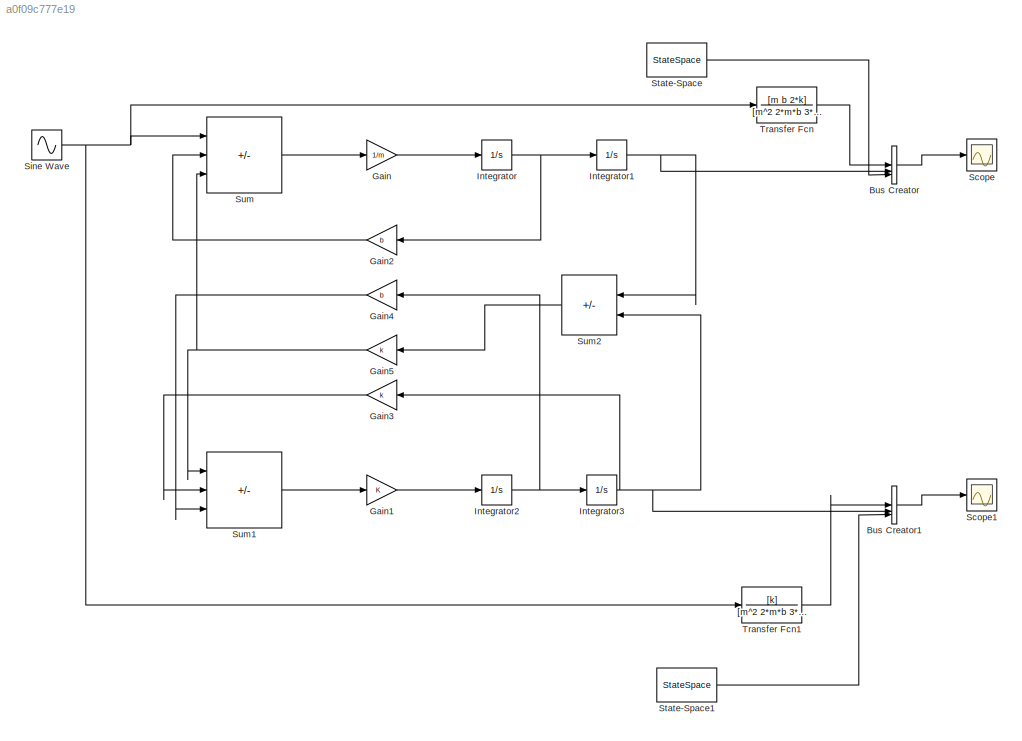
MODEL slx_a0f09c777e19
KIND model
CONFIG AbsTol = auto
CONFIG EnableMultiTasking = off
CONFIG FixedStep = auto
CONFIG MaxStep = auto
CONFIG MinStep = auto
CONFIG RelTol = 1e-3
CONFIG SampleTimeConstraint = Unconstrained
CONFIG SolverName = VariableStepAuto
CONFIG StartTime = 0.0
CONFIG StopTime = 10.0
BLOCK [BusCreator] Bus Creator
  DisplayOption = bar
  InheritFromInputs = on
  Inputs = 3
BLOCK [BusCreator] Bus Creator1
  DisplayOption = bar
  InheritFromInputs = on
  Inputs = 3
BLOCK [Gain] Gain
  Gain = 1/m
BLOCK [Gain] Gain1
BLOCK [Gain] Gain2
  Gain = b
BLOCK [Gain] Gain3
  Gain = k
BLOCK [Gain] Gain4
  Gain = b
BLOCK [Gain] Gain5
  Gain = k
BLOCK [Integrator] Integrator
BLOCK [Integrator] Integrator1
BLOCK [Integrator] Integrator2
BLOCK [Integrator] Integrator3
BLOCK [Scope] Scope
  Floating = off
  NumInputPorts = 1
  ScopeSpecificationString = Simulink.scopes.TimeScopeBlockCfg('CurrentConfiguration', extmgr.ConfigurationSet(extmgr.Configuration('Core','General UI',true),extmgr.Configuration('Core','Source UI',true),extmgr.Configuration('Sources','WiredSimulink',true),extmgr.Configuration('Visuals','Time Domain',true,'SerializedDisplays',{struct('MinYLimReal','-0.03068','MaxYLimReal','0.27609','YLabelReal','','MinYLimMag','0.00000','MaxY...<+1360ch>
BLOCK [Scope] Scope1
  Floating = off
  NumInputPorts = 1
  ScopeSpecificationString = Simulink.scopes.TimeScopeBlockCfg('CurrentConfiguration', extmgr.ConfigurationSet(extmgr.Configuration('Core','General UI',true),extmgr.Configuration('Core','Source UI',true),extmgr.Configuration('Sources','WiredSimulink',true,'DataLoggingVariableName','ScopeData1'),extmgr.Configuration('Visuals','Time Domain',true,'SerializedDisplays',{struct('MinYLimReal','-0.08332','MaxYLimReal','0.74984','YLab...<+1401ch>
BLOCK [Sin] Sine Wave
  Frequency = omega
  SampleTime = 0
BLOCK [StateSpace] State-Space
  A = A
  B = B
  C = C1
  D = D1
  InitialCondition = 0
BLOCK [StateSpace] State-Space1
  A = A
  B = B
  C = C2
  D = D2
  InitialCondition = 0
BLOCK [Sum] Sum
  IconShape = rectangular
  Inputs = |+--
BLOCK [Sum] Sum1
  IconShape = rectangular
  Inputs = |+--
BLOCK [Sum] Sum2
  IconShape = rectangular
  Inputs = |+-
BLOCK [TransferFcn] Transfer Fcn
  Denominator = [m^2 2*m*b 3*k*m+b^2 3*b*k k^2]
  Numerator = [m b 2*k]
BLOCK [TransferFcn] Transfer Fcn1
  Denominator = [m^2 2*m*b 3*k*m+b^2 3*b*k k^2]
  Numerator = [k]
LINE Bus Creator1:1 -> Scope1:1
LINE Bus Creator:1 -> Scope:1
LINE Gain1:1 -> Integrator2:1
LINE Gain2:1 -> Sum:2
LINE Gain3:1 -> Sum1:2
LINE Gain4:1 -> Sum1:3
NET Gain5:1 -> Sum1:1, Sum:3
LINE Gain:1 -> Integrator:1
NET Integrator1:1 -> Bus Creator:2, Sum2:1
NET Integrator2:1 -> Gain4:1, Integrator3:1
NET Integrator3:1 -> Bus Creator1:2, Gain3:1, Sum2:2
NET Integrator:1 -> Gain2:1, Integrator1:1
NET Sine Wave:1 -> Sum:1, Transfer Fcn1:1, Transfer Fcn:1
LINE State-Space1:1 -> Bus Creator1:3
LINE State-Space:1 -> Bus Creator:3
LINE Sum1:1 -> Gain1:1
LINE Sum2:1 -> Gain5:1
LINE Sum:1 -> Gain:1
LINE Transfer Fcn1:1 -> Bus Creator1:1
LINE Transfer Fcn:1 -> Bus Creator:1
note: NET lines group one-source signal fan-out (src -> all destinations, sorted); 1:1 wires keep LINE
